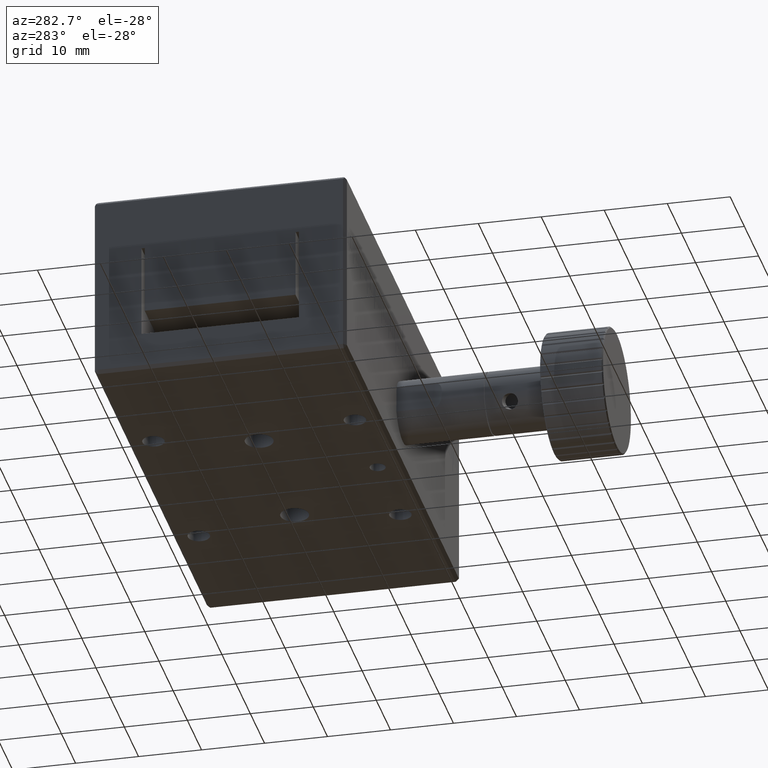
[diagram: clean part render]
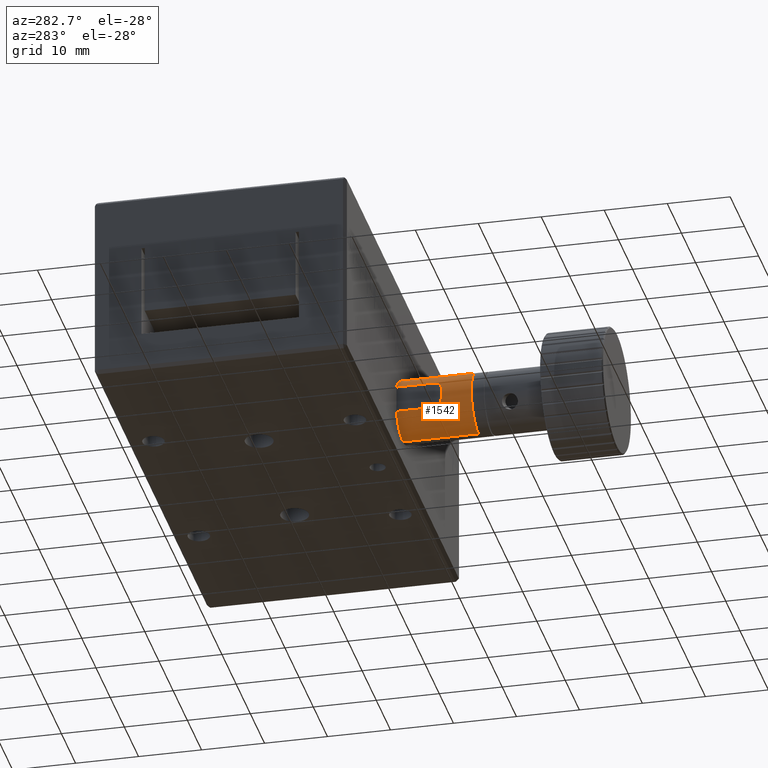
[diagram: same view with one face highlighted and labeled with its STEP entity id]
A machine part, auxiliary view. The second image highlights one B-rep face of the part: STEP entity #1542.
In plain terms, the highlighted cylindrical surface (edge-blend (fillet) strip) has radius 5 mm, axis along (-0, -1, -0).
Its self-contained STEP definition (entity closure, byte-faithful):
#404 = AXIS2_PLACEMENT_3D ( 'NONE', #6145, #7696, #1122 ) ;
#810 = CARTESIAN_POINT ( 'NONE',  ( -4.741383686981244200, -26.83352062672630800, 7.359239129914904300 ) ) ;
#875 = CARTESIAN_POINT ( 'NONE',  ( -4.499864341358535700, -26.46375036345771600, 11.21245921834619500 ) ) ;
#1122 = DIRECTION ( 'NONE',  ( 0.0000000000000000000, 0.0000000000000000000, -1.000000000000000000 ) ) ;
#1131 = CARTESIAN_POINT ( 'NONE',  ( -0.01563224200000026100, -32.00000000000000000, 9.000244426999996600 ) ) ;
#1459 = DIRECTION ( 'NONE',  ( -1.084704714734276100E-017, -1.000000000000000000, -3.467750900364981600E-016 ) ) ;
#1542 = ADVANCED_FACE ( 'NONE', ( #8107 ), #11399, .T. ) ;
#2007 = EDGE_CURVE ( 'NONE', #2191, #17033, #15677, .T. ) ;
#2107 = VERTEX_POINT ( 'NONE', #16755 ) ;
#2191 = VERTEX_POINT ( 'NONE', #2509 ) ;
#2476 = CARTESIAN_POINT ( 'NONE',  ( -4.915352278129439000, -27.15807759135077100, 7.980215250690916300 ) ) ;
#2509 = CARTESIAN_POINT ( 'NONE',  ( -0.01563224200000019900, -20.00000000000000000, 4.000244426531360800 ) ) ;
#2522 = VECTOR ( 'NONE', #6558, 1000.000000000000000 ) ;
#2540 = CARTESIAN_POINT ( 'NONE',  ( -4.445293037140269900, -26.12166110213394500, 11.31931864846991500 ) ) ;
#2800 = DIRECTION ( 'NONE',  ( 0.0000000000000000000, 0.0000000000000000000, -1.000000000000000000 ) ) ;
#2814 = VERTEX_POINT ( 'NONE', #7712 ) ;
#3035 = LINE ( 'NONE', #14665, #2522 ) ;
#3381 = CARTESIAN_POINT ( 'NONE',  ( -0.01563224199999958500, -20.00000000000000000, 14.00024442746864200 ) ) ;
#3835 = CARTESIAN_POINT ( 'NONE',  ( -0.01563224199999951900, -20.00000000000000000, 14.00024442746864000 ) ) ;
#4059 = EDGE_CURVE ( 'NONE', #16214, #20648, #18135, .T. ) ;
#4126 = CARTESIAN_POINT ( 'NONE',  ( -5.010648612332032000, -27.30378533473771100, 8.676713925001630300 ) ) ;
#4280 = EDGE_CURVE ( 'NONE', #16045, #16214, #6006, .T. ) ;
#4302 = AXIS2_PLACEMENT_3D ( 'NONE', #15590, #5904, #17173 ) ;
#4597 = LINE ( 'NONE', #3835, #15965 ) ;
#5458 = DIRECTION ( 'NONE',  ( 0.0000000000000000000, 0.0000000000000000000, -1.000000000000000000 ) ) ;
#5479 = DIRECTION ( 'NONE',  ( -1.084704714734276100E-017, -1.000000000000000000, -3.467750900364981600E-016 ) ) ;
#5752 = CARTESIAN_POINT ( 'NONE',  ( -5.005621537001869300, -27.32284672554899200, 9.397646324828425400 ) ) ;
#5904 = DIRECTION ( 'NONE',  ( 1.084704714734276100E-017, 1.000000000000000000, 3.467750900364981600E-016 ) ) ;
#6006 = LINE ( 'NONE', #9610, #6520 ) ;
#6085 = CARTESIAN_POINT ( 'NONE',  ( -4.581571766914132500, -20.00000000000000000, 6.962550568332345900 ) ) ;
#6145 = CARTESIAN_POINT ( 'NONE',  ( -0.01563224200000013300, -20.00000000000000000, 9.000244427000000200 ) ) ;
#6511 = CIRCLE ( 'NONE', #15355, 5.000000000468640200 ) ;
#6520 = VECTOR ( 'NONE', #19293, 1000.000000000000000 ) ;
#6558 = DIRECTION ( 'NONE',  ( -0.0000000000000000000, 1.000000000000000000, -0.0000000000000000000 ) ) ;
#7246 = ORIENTED_EDGE ( 'NONE', *, *, #20056, .T. ) ;
#7386 = CARTESIAN_POINT ( 'NONE',  ( -4.899787922030747600, -27.22220371765908100, 10.09571834490610200 ) ) ;
#7391 = EDGE_CURVE ( 'NONE', #18654, #17033, #3035, .T. ) ;
#7548 = EDGE_LOOP ( 'NONE', ( #18623, #14513, #19694, #13735, #20638, #17702, #12422, #7246 ) ) ;
#7696 = DIRECTION ( 'NONE',  ( -1.084704714734276100E-017, -1.000000000000000000, -3.467750900364981600E-016 ) ) ;
#7712 = CARTESIAN_POINT ( 'NONE',  ( -0.01563224199999958500, -32.00000000000000000, 14.00024442746863700 ) ) ;
#7796 = CARTESIAN_POINT ( 'NONE',  ( -0.01563224200000013300, -20.00000000000000000, 9.000244427000000200 ) ) ;
#8107 = FACE_OUTER_BOUND ( 'NONE', #7548, .T. ) ;
#9008 = CARTESIAN_POINT ( 'NONE',  ( -4.708284409993799700, -26.96543645301561700, 10.74003029983462200 ) ) ;
#9610 = CARTESIAN_POINT ( 'NONE',  ( -4.445293035928512100, -26.00000000000000400, 11.31931865078392900 ) ) ;
#10423 = EDGE_CURVE ( 'NONE', #18654, #16045, #12736, .T. ) ;
#10502 = CARTESIAN_POINT ( 'NONE',  ( -4.581571767015339500, -26.12172131010103700, 6.962550568798989500 ) ) ;
#10566 = CARTESIAN_POINT ( 'NONE',  ( -4.655399090425678600, -26.56517905907089300, 7.135044740112352500 ) ) ;
#10634 = CARTESIAN_POINT ( 'NONE',  ( -4.529326843226366300, -26.56396441747827500, 11.15270292617080900 ) ) ;
#11399 = CYLINDRICAL_SURFACE ( 'NONE', #404, 5.000000000468640200 ) ;
#12183 = CARTESIAN_POINT ( 'NONE',  ( -4.807728121031591000, -26.96519784720351300, 7.556799575563513100 ) ) ;
#12260 = CARTESIAN_POINT ( 'NONE',  ( -4.457263799657472900, -26.24038991811995900, 11.29679421091272400 ) ) ;
#12422 = ORIENTED_EDGE ( 'NONE', *, *, #16104, .T. ) ;
#12506 = DIRECTION ( 'NONE',  ( 1.084704714734276100E-017, 1.000000000000000000, 3.467750900364981600E-016 ) ) ;
#12736 = B_SPLINE_CURVE_WITH_KNOTS ( 'NONE', 3,
 ( #18594, #10502, #13710, #20219, #10566, #810, #12183, #2476, #13785, #4126, #15436, #5752, #17045, #7386, #18658, #9008, #20288, #10634, #875, #12260, #2540, #13847 ),
 .UNSPECIFIED., .F., .F.,
 ( 4, 2, 2, 2, 2, 2, 2, 2, 2, 2, 4 ),
 ( -0.002851247200851871500, -0.002494775948299944900, -0.002138304695748018400, -0.001425362190644165500, -0.0007124196855403126100, 5.228195635404928000E-007, 0.0007134653246673931600, 0.001426407829771246300, 0.002139350334875099400, 0.002495821587427024600, 0.002852292839978949900 ),
 .UNSPECIFIED. ) ;
#13059 = AXIS2_PLACEMENT_3D ( 'NONE', #7796, #19068, #5458 ) ;
#13400 = CARTESIAN_POINT ( 'NONE',  ( -4.581571766984661000, -26.00000000000000400, 6.962550568490379500 ) ) ;
#13710 = CARTESIAN_POINT ( 'NONE',  ( -4.592169820375109300, -26.24068902727681900, 6.985916950744873500 ) ) ;
#13735 = ORIENTED_EDGE ( 'NONE', *, *, #10423, .F. ) ;
#13785 = CARTESIAN_POINT ( 'NONE',  ( -4.958529304506096300, -27.22193704953798500, 8.211175890637711900 ) ) ;
#13847 = CARTESIAN_POINT ( 'NONE',  ( -4.445293036788108100, -26.00000000000000400, 11.31931864963449100 ) ) ;
#14371 = CARTESIAN_POINT ( 'NONE',  ( -4.445293036788108100, -26.00000000000000400, 11.31931864963449100 ) ) ;
#14513 = ORIENTED_EDGE ( 'NONE', *, *, #4059, .F. ) ;
#14665 = CARTESIAN_POINT ( 'NONE',  ( -4.581571766999999800, -23.00000000000000000, 6.962550567999998400 ) ) ;
#15355 = AXIS2_PLACEMENT_3D ( 'NONE', #1131, #12506, #2800 ) ;
#15436 = CARTESIAN_POINT ( 'NONE',  ( -5.020721249525981200, -27.32290452131904200, 8.916545804708544400 ) ) ;
#15590 = CARTESIAN_POINT ( 'NONE',  ( -0.01563224200000013300, -20.00000000000000000, 9.000244427000000200 ) ) ;
#15677 = CIRCLE ( 'NONE', #13059, 5.000000000468640200 ) ;
#15965 = VECTOR ( 'NONE', #5479, 1000.000000000000000 ) ;
#16045 = VERTEX_POINT ( 'NONE', #14371 ) ;
#16104 = EDGE_CURVE ( 'NONE', #2191, #2107, #20825, .T. ) ;
#16214 = VERTEX_POINT ( 'NONE', #19666 ) ;
#16755 = CARTESIAN_POINT ( 'NONE',  ( -0.01563224200000026100, -32.00000000000000000, 4.000244426531357300 ) ) ;
#17033 = VERTEX_POINT ( 'NONE', #6085 ) ;
#17045 = CARTESIAN_POINT ( 'NONE',  ( -4.980905240312727000, -27.30400173968126200, 9.633572038758503100 ) ) ;
#17173 = DIRECTION ( 'NONE',  ( 0.0000000000000000000, 0.0000000000000000000, -1.000000000000000000 ) ) ;
#17702 = ORIENTED_EDGE ( 'NONE', *, *, #2007, .F. ) ;
#18135 = CIRCLE ( 'NONE', #4302, 5.000000000468640200 ) ;
#18148 = EDGE_CURVE ( 'NONE', #20648, #2814, #4597, .T. ) ;
#18594 = CARTESIAN_POINT ( 'NONE',  ( -4.581571766984661000, -26.00000000000000400, 6.962550568490379500 ) ) ;
#18623 = ORIENTED_EDGE ( 'NONE', *, *, #18148, .F. ) ;
#18654 = VERTEX_POINT ( 'NONE', #13400 ) ;
#18658 = CARTESIAN_POINT ( 'NONE',  ( -4.842280238432638700, -27.15840697373463200, 10.32361450812796000 ) ) ;
#19068 = DIRECTION ( 'NONE',  ( 1.084704714734276100E-017, 1.000000000000000000, 3.467750900364981600E-016 ) ) ;
#19293 = DIRECTION ( 'NONE',  ( -0.0000000000000000000, 1.000000000000000000, -0.0000000000000000000 ) ) ;
#19666 = CARTESIAN_POINT ( 'NONE',  ( -4.445293036548893200, -20.00000000000000000, 11.31931864959893700 ) ) ;
#19694 = ORIENTED_EDGE ( 'NONE', *, *, #4280, .F. ) ;
#20056 = EDGE_CURVE ( 'NONE', #2107, #2814, #6511, .T. ) ;
#20219 = CARTESIAN_POINT ( 'NONE',  ( -4.629246681273025700, -26.46313497839703300, 7.072350966871225900 ) ) ;
#20288 = CARTESIAN_POINT ( 'NONE',  ( -4.630025390136581500, -26.83482286322868400, 10.93245612232255600 ) ) ;
#20332 = VECTOR ( 'NONE', #1459, 1000.000000000000000 ) ;
#20638 = ORIENTED_EDGE ( 'NONE', *, *, #7391, .T. ) ;
#20648 = VERTEX_POINT ( 'NONE', #3381 ) ;
#20825 = LINE ( 'NONE', #20922, #20332 ) ;
#20922 = CARTESIAN_POINT ( 'NONE',  ( -0.01563224200000013300, -20.00000000000000000, 4.000244426531360800 ) ) ;